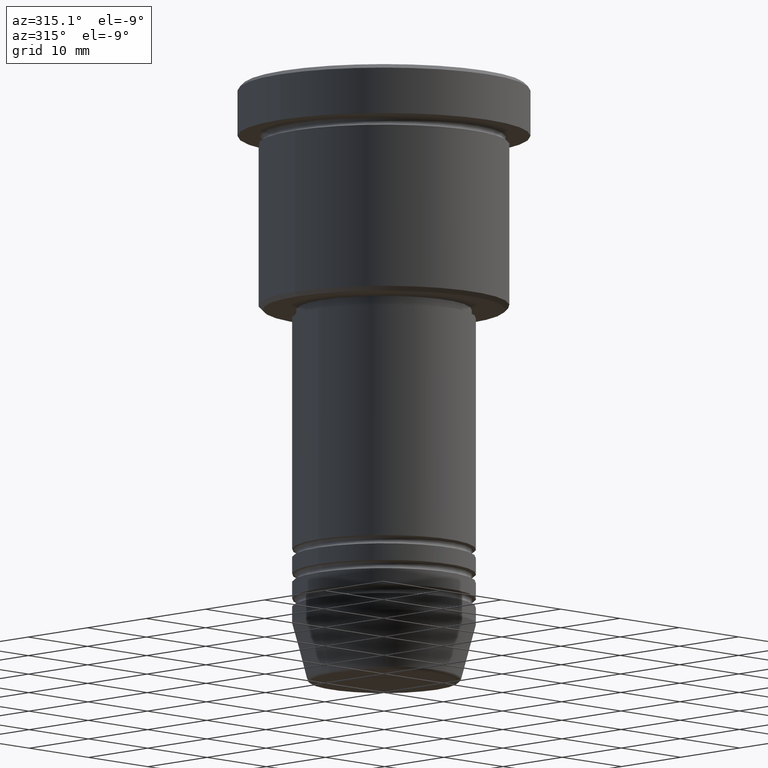
[diagram: clean part render]
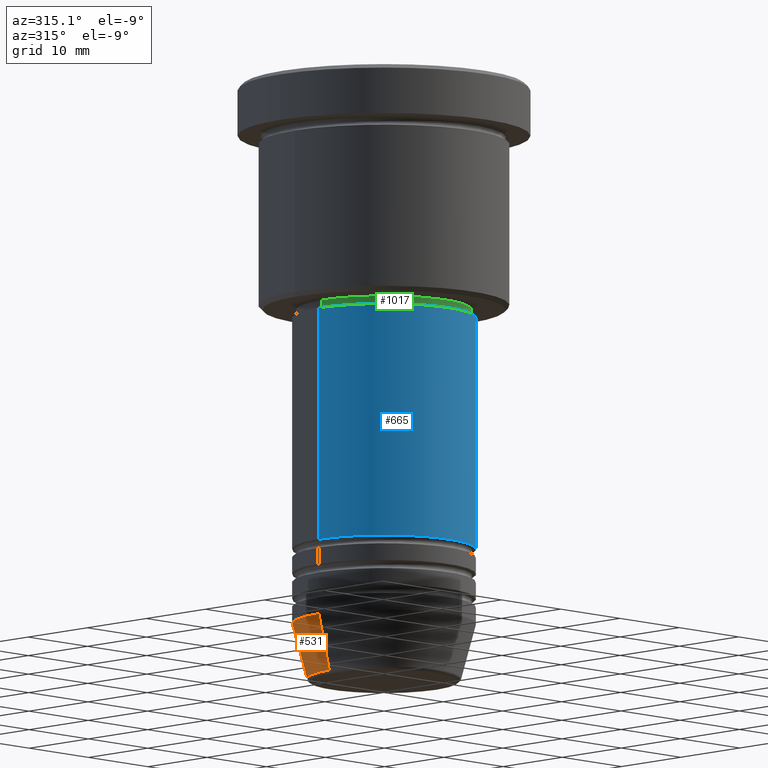
[diagram: same view with three faces highlighted in distinct colors, each labeled with its STEP entity id]
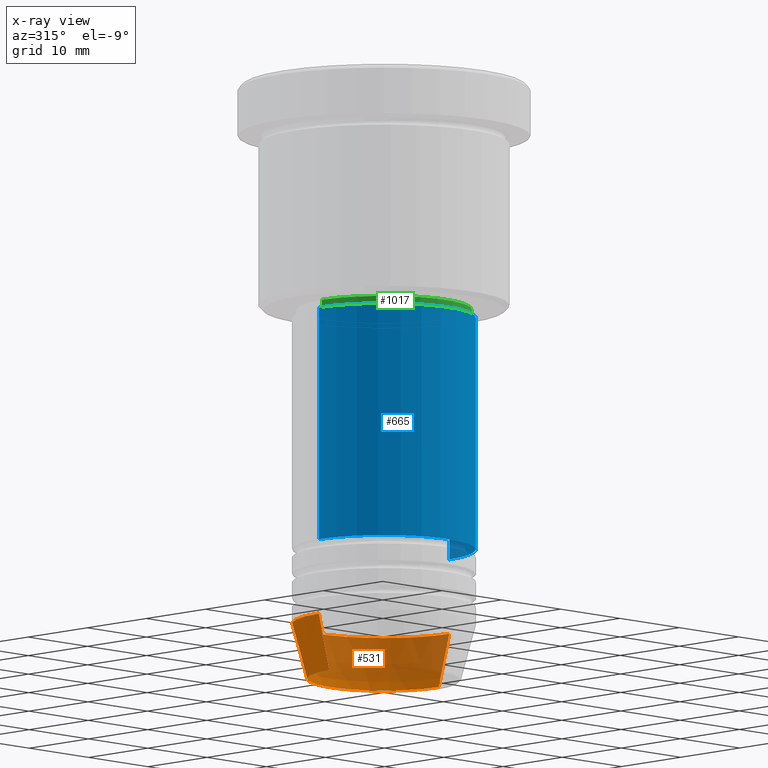
[diagram: x-ray of the same camera — body ghosted, the three highlighted faces saturated]
A machine part, auxiliary view with three faces highlighted in distinct colors.
The next image is the same camera in x-ray (body ghosted, the three faces saturated) — at least one of them is partly hidden behind the body in this view.
Their STEP definitions:

[orange] entity #531 — the highlighted conical surface has half-angle 15 deg.
#88 = CARTESIAN_POINT ( 'NONE',  ( 0.000000000000000000, 0.000000000000000000, -71.62940952255125637 ) ) ;
#106 = CIRCLE ( 'NONE', #858, 11.00000000000000000 ) ;
#119 = VERTEX_POINT ( 'NONE', #230 ) ;
#188 = CARTESIAN_POINT ( 'NONE',  ( 11.00000000000000000, 0.000000000000000000, -65.00000000000000000 ) ) ;
#192 = VECTOR ( 'NONE', #744, 1000.000000000000000 ) ;
#196 = CARTESIAN_POINT ( 'NONE',  ( 11.00000000000000000, 0.000000000000000000, -65.00000000000000000 ) ) ;
#205 = VERTEX_POINT ( 'NONE', #450 ) ;
#230 = CARTESIAN_POINT ( 'NONE',  ( 9.223655072137187716, 0.000000000000000000, -71.62940952255125637 ) ) ;
#276 = DIRECTION ( 'NONE',  ( -0.000000000000000000, -0.000000000000000000, 1.000000000000000000 ) ) ;
#319 = VERTEX_POINT ( 'NONE', #196 ) ;
#367 = EDGE_LOOP ( 'NONE', ( #857, #574, #841, #1029 ) ) ;
#446 = EDGE_CURVE ( 'NONE', #205, #1173, #700, .T. ) ;
#450 = CARTESIAN_POINT ( 'NONE',  ( -9.223655072137187716, 1.238341722557647004E-15, -71.62940952255125637 ) ) ;
#477 = EDGE_CURVE ( 'NONE', #319, #1173, #106, .T. ) ;
#504 = CIRCLE ( 'NONE', #789, 9.223655072137187716 ) ;
#518 = DIRECTION ( 'NONE',  ( -0.000000000000000000, -0.000000000000000000, 1.000000000000000000 ) ) ;
#527 = FACE_OUTER_BOUND ( 'NONE', #367, .T. ) ;
#531 = ADVANCED_FACE ( 'NONE', ( #527 ), #633, .T. ) ;
#532 = CARTESIAN_POINT ( 'NONE',  ( 0.000000000000000000, 0.000000000000000000, -65.00000000000000000 ) ) ;
#555 = LINE ( 'NONE', #188, #192 ) ;
#574 = ORIENTED_EDGE ( 'NONE', *, *, #446, .T. ) ;
#608 = CARTESIAN_POINT ( 'NONE',  ( 0.000000000000000000, 0.000000000000000000, -65.00000000000000000 ) ) ;
#633 = CONICAL_SURFACE ( 'NONE', #740, 11.00000000000000000, 0.2617993877991500740 ) ;
#685 = DIRECTION ( 'NONE',  ( 1.000000000000000000, 0.000000000000000000, 0.000000000000000000 ) ) ;
#700 = LINE ( 'NONE', #795, #779 ) ;
#730 = CARTESIAN_POINT ( 'NONE',  ( -11.00000000000000000, 1.347111479062088405E-15, -65.00000000000000000 ) ) ;
#740 = AXIS2_PLACEMENT_3D ( 'NONE', #608, #518, #881 ) ;
#744 = DIRECTION ( 'NONE',  ( 0.2588190451025213501, 0.000000000000000000, 0.9659258262890680902 ) ) ;
#779 = VECTOR ( 'NONE', #1047, 1000.000000000000000 ) ;
#789 = AXIS2_PLACEMENT_3D ( 'NONE', #88, #276, #1015 ) ;
#795 = CARTESIAN_POINT ( 'NONE',  ( -11.00000000000000000, 1.347111479062088405E-15, -65.00000000000000000 ) ) ;
#841 = ORIENTED_EDGE ( 'NONE', *, *, #477, .F. ) ;
#857 = ORIENTED_EDGE ( 'NONE', *, *, #1108, .T. ) ;
#858 = AXIS2_PLACEMENT_3D ( 'NONE', #532, #1142, #685 ) ;
#881 = DIRECTION ( 'NONE',  ( 1.000000000000000000, 0.000000000000000000, 0.000000000000000000 ) ) ;
#988 = EDGE_CURVE ( 'NONE', #119, #319, #555, .T. ) ;
#1015 = DIRECTION ( 'NONE',  ( 1.000000000000000000, 0.000000000000000000, 0.000000000000000000 ) ) ;
#1029 = ORIENTED_EDGE ( 'NONE', *, *, #988, .F. ) ;
#1047 = DIRECTION ( 'NONE',  ( -0.2588190451025213501, 3.169619151431772337E-17, 0.9659258262890680902 ) ) ;
#1108 = EDGE_CURVE ( 'NONE', #119, #205, #504, .T. ) ;
#1142 = DIRECTION ( 'NONE',  ( -0.000000000000000000, -0.000000000000000000, 1.000000000000000000 ) ) ;
#1173 = VERTEX_POINT ( 'NONE', #730 ) ;

[blue] entity #665 — the highlighted cylindrical surface (partial cylindrical patch) has radius 11 mm, axis along (-0, -0, 1).
#5 = DIRECTION ( 'NONE',  ( -0.000000000000000000, -0.000000000000000000, 1.000000000000000000 ) ) ;
#47 = VERTEX_POINT ( 'NONE', #597 ) ;
#55 = DIRECTION ( 'NONE',  ( 1.000000000000000000, 0.000000000000000000, 0.000000000000000000 ) ) ;
#68 = CARTESIAN_POINT ( 'NONE',  ( 0.000000000000000000, 0.000000000000000000, -55.99999999999997868 ) ) ;
#84 = LINE ( 'NONE', #365, #515 ) ;
#93 = CIRCLE ( 'NONE', #110, 11.00000000000000000 ) ;
#110 = AXIS2_PLACEMENT_3D ( 'NONE', #68, #439, #798 ) ;
#139 = CARTESIAN_POINT ( 'NONE',  ( 0.000000000000000000, 0.000000000000000000, -28.00000000000000355 ) ) ;
#160 = CARTESIAN_POINT ( 'NONE',  ( -11.00000000000000000, 1.347111479062088405E-15, -28.00000000000000355 ) ) ;
#257 = EDGE_CURVE ( 'NONE', #47, #1145, #84, .T. ) ;
#268 = AXIS2_PLACEMENT_3D ( 'NONE', #139, #705, #55 ) ;
#283 = DIRECTION ( 'NONE',  ( -0.000000000000000000, -0.000000000000000000, 1.000000000000000000 ) ) ;
#294 = EDGE_LOOP ( 'NONE', ( #569, #971, #567, #498 ) ) ;
#332 = CARTESIAN_POINT ( 'NONE',  ( 0.000000000000000000, 0.000000000000000000, 0.000000000000000000 ) ) ;
#365 = CARTESIAN_POINT ( 'NONE',  ( 11.00000000000000000, 0.000000000000000000, 0.000000000000000000 ) ) ;
#366 = AXIS2_PLACEMENT_3D ( 'NONE', #332, #797, #516 ) ;
#410 = VECTOR ( 'NONE', #5, 1000.000000000000000 ) ;
#439 = DIRECTION ( 'NONE',  ( -0.000000000000000000, -0.000000000000000000, 1.000000000000000000 ) ) ;
#493 = EDGE_CURVE ( 'NONE', #781, #1145, #1007, .T. ) ;
#498 = ORIENTED_EDGE ( 'NONE', *, *, #493, .F. ) ;
#507 = CYLINDRICAL_SURFACE ( 'NONE', #366, 11.00000000000000000 ) ;
#515 = VECTOR ( 'NONE', #283, 1000.000000000000000 ) ;
#516 = DIRECTION ( 'NONE',  ( 1.000000000000000000, 0.000000000000000000, 0.000000000000000000 ) ) ;
#557 = EDGE_CURVE ( 'NONE', #1118, #47, #93, .T. ) ;
#567 = ORIENTED_EDGE ( 'NONE', *, *, #257, .T. ) ;
#569 = ORIENTED_EDGE ( 'NONE', *, *, #899, .F. ) ;
#597 = CARTESIAN_POINT ( 'NONE',  ( 11.00000000000000000, 0.000000000000000000, -55.99999999999997868 ) ) ;
#665 = ADVANCED_FACE ( 'NONE', ( #941 ), #507, .T. ) ;
#705 = DIRECTION ( 'NONE',  ( -0.000000000000000000, -0.000000000000000000, 1.000000000000000000 ) ) ;
#781 = VERTEX_POINT ( 'NONE', #160 ) ;
#797 = DIRECTION ( 'NONE',  ( -0.000000000000000000, -0.000000000000000000, 1.000000000000000000 ) ) ;
#798 = DIRECTION ( 'NONE',  ( 1.000000000000000000, 0.000000000000000000, 0.000000000000000000 ) ) ;
#821 = CARTESIAN_POINT ( 'NONE',  ( 11.00000000000000000, 0.000000000000000000, -28.00000000000000355 ) ) ;
#899 = EDGE_CURVE ( 'NONE', #1118, #781, #1167, .T. ) ;
#941 = FACE_OUTER_BOUND ( 'NONE', #294, .T. ) ;
#971 = ORIENTED_EDGE ( 'NONE', *, *, #557, .T. ) ;
#985 = CARTESIAN_POINT ( 'NONE',  ( -11.00000000000000000, 1.347111479062088405E-15, 0.000000000000000000 ) ) ;
#1007 = CIRCLE ( 'NONE', #268, 11.00000000000000000 ) ;
#1091 = CARTESIAN_POINT ( 'NONE',  ( -11.00000000000000000, 1.347111479062088405E-15, -55.99999999999997868 ) ) ;
#1118 = VERTEX_POINT ( 'NONE', #1091 ) ;
#1145 = VERTEX_POINT ( 'NONE', #821 ) ;
#1167 = LINE ( 'NONE', #985, #410 ) ;

[green] entity #1017 — the highlighted cylindrical surface (partial cylindrical patch) has radius 10.5 mm, axis along (-0, -0, 1).
#14 = EDGE_CURVE ( 'NONE', #491, #200, #246, .T. ) ;
#21 = DIRECTION ( 'NONE',  ( -0.000000000000000000, -0.000000000000000000, 1.000000000000000000 ) ) ;
#59 = AXIS2_PLACEMENT_3D ( 'NONE', #262, #362, #176 ) ;
#69 = DIRECTION ( 'NONE',  ( -0.000000000000000000, -0.000000000000000000, 1.000000000000000000 ) ) ;
#125 = ORIENTED_EDGE ( 'NONE', *, *, #916, .F. ) ;
#147 = CARTESIAN_POINT ( 'NONE',  ( 0.000000000000000000, 0.000000000000000000, -27.00000000000000355 ) ) ;
#165 = CARTESIAN_POINT ( 'NONE',  ( -10.49999999999999822, 1.285879139104720633E-15, 0.000000000000000000 ) ) ;
#176 = DIRECTION ( 'NONE',  ( 1.000000000000000000, 0.000000000000000000, 0.000000000000000000 ) ) ;
#200 = VERTEX_POINT ( 'NONE', #898 ) ;
#231 = CYLINDRICAL_SURFACE ( 'NONE', #634, 10.49999999999999822 ) ;
#235 = VERTEX_POINT ( 'NONE', #812 ) ;
#241 = ORIENTED_EDGE ( 'NONE', *, *, #915, .T. ) ;
#246 = CIRCLE ( 'NONE', #587, 10.49999999999999822 ) ;
#262 = CARTESIAN_POINT ( 'NONE',  ( 0.000000000000000000, 0.000000000000000000, -28.00000000000000355 ) ) ;
#320 = DIRECTION ( 'NONE',  ( 1.000000000000000000, 0.000000000000000000, 0.000000000000000000 ) ) ;
#328 = VECTOR ( 'NONE', #976, 1000.000000000000000 ) ;
#334 = CARTESIAN_POINT ( 'NONE',  ( -10.49999999999999822, 1.285879139104720633E-15, -27.00000000000000355 ) ) ;
#355 = LINE ( 'NONE', #165, #520 ) ;
#362 = DIRECTION ( 'NONE',  ( -0.000000000000000000, -0.000000000000000000, 1.000000000000000000 ) ) ;
#376 = CARTESIAN_POINT ( 'NONE',  ( 10.49999999999999822, 0.000000000000000000, 0.000000000000000000 ) ) ;
#387 = FACE_OUTER_BOUND ( 'NONE', #777, .T. ) ;
#491 = VERTEX_POINT ( 'NONE', #334 ) ;
#520 = VECTOR ( 'NONE', #530, 1000.000000000000000 ) ;
#530 = DIRECTION ( 'NONE',  ( -0.000000000000000000, -0.000000000000000000, 1.000000000000000000 ) ) ;
#572 = CIRCLE ( 'NONE', #59, 10.49999999999999822 ) ;
#587 = AXIS2_PLACEMENT_3D ( 'NONE', #147, #69, #885 ) ;
#634 = AXIS2_PLACEMENT_3D ( 'NONE', #836, #21, #320 ) ;
#775 = VERTEX_POINT ( 'NONE', #1063 ) ;
#777 = EDGE_LOOP ( 'NONE', ( #125, #1126, #241, #794 ) ) ;
#794 = ORIENTED_EDGE ( 'NONE', *, *, #14, .F. ) ;
#812 = CARTESIAN_POINT ( 'NONE',  ( -10.49999999999999822, 1.285879139104720633E-15, -28.00000000000000355 ) ) ;
#836 = CARTESIAN_POINT ( 'NONE',  ( 0.000000000000000000, 0.000000000000000000, 0.000000000000000000 ) ) ;
#885 = DIRECTION ( 'NONE',  ( 1.000000000000000000, 0.000000000000000000, 0.000000000000000000 ) ) ;
#890 = EDGE_CURVE ( 'NONE', #235, #775, #572, .T. ) ;
#898 = CARTESIAN_POINT ( 'NONE',  ( 10.49999999999999822, 0.000000000000000000, -27.00000000000000355 ) ) ;
#906 = LINE ( 'NONE', #376, #328 ) ;
#915 = EDGE_CURVE ( 'NONE', #775, #200, #906, .T. ) ;
#916 = EDGE_CURVE ( 'NONE', #235, #491, #355, .T. ) ;
#976 = DIRECTION ( 'NONE',  ( -0.000000000000000000, -0.000000000000000000, 1.000000000000000000 ) ) ;
#1017 = ADVANCED_FACE ( 'NONE', ( #387 ), #231, .T. ) ;
#1063 = CARTESIAN_POINT ( 'NONE',  ( 10.49999999999999822, 0.000000000000000000, -28.00000000000000355 ) ) ;
#1126 = ORIENTED_EDGE ( 'NONE', *, *, #890, .T. ) ;